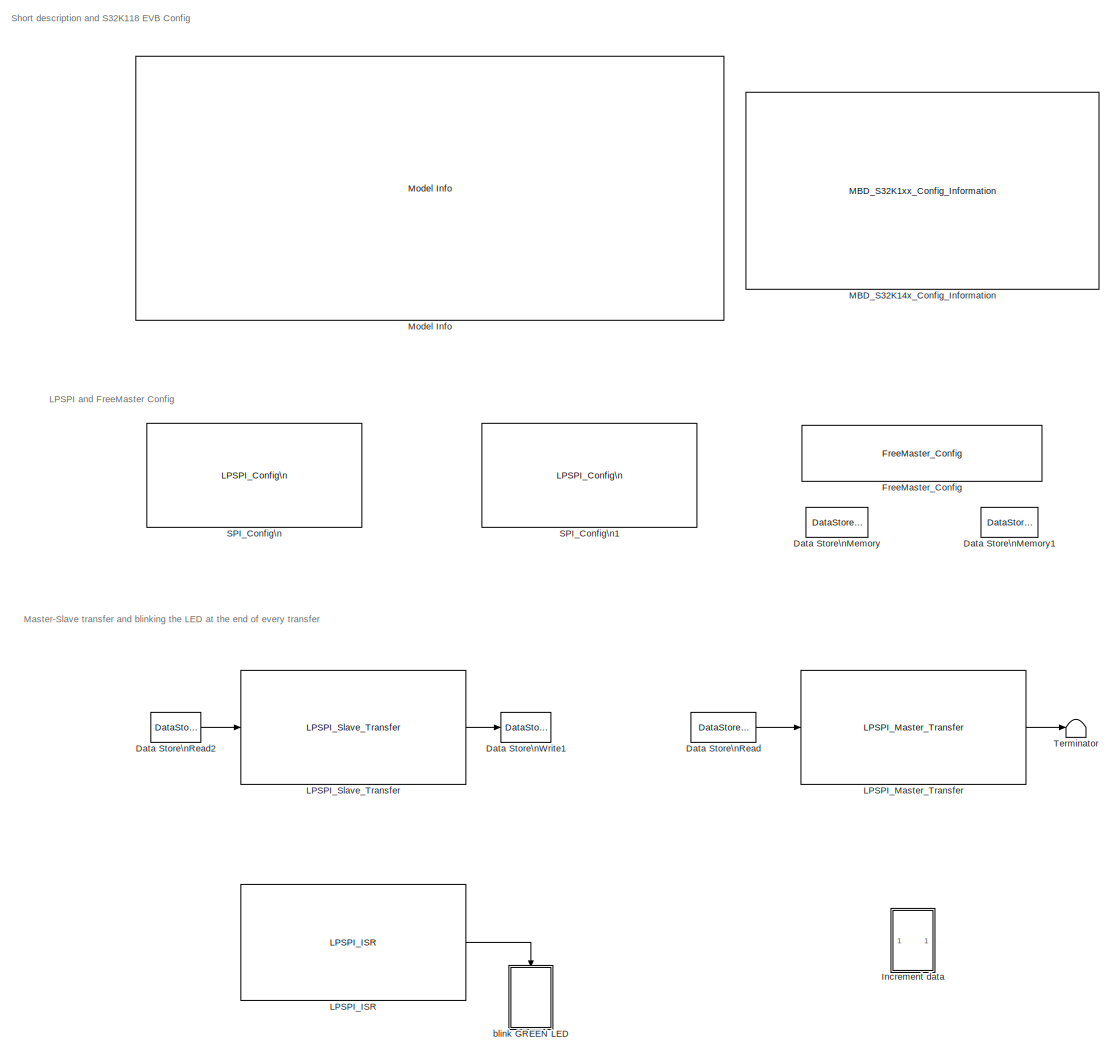
[diagram: root canvas - part 1/1, most of the canvas]
MODEL lpspi_master_slave_s32k11x
KIND model
CONFIG InitFcn = mbd_s32k_consistency_checks(bdroot(gcs));
BLOCK [DataStoreMemory] Data Store\nMemory
  DataStoreName = master_send
  InitialValue = 2
  OutDataTypeStr = uint8
  Priority = 2
  ReadBeforeWriteMsg = warning
  SID = 107
  ShowAdditionalParam = off
  WriteAfterReadMsg = warning
  WriteAfterWriteMsg = warning
BLOCK [DataStoreMemory] Data Store\nMemory1
  DataStoreName = slave_recv
  OutDataTypeStr = uint8
  Priority = 2
  ReadBeforeWriteMsg = warning
  SID = 118
  ShowAdditionalParam = off
  WriteAfterReadMsg = warning
  WriteAfterWriteMsg = warning
BLOCK [DataStoreRead] Data Store\nRead
  DataStoreName = master_send
  Ports = [0, 1]
  SID = 108
BLOCK [DataStoreRead] Data Store\nRead2
  DataStoreName = slave_recv
  Ports = [0, 1]
  Priority = 1
  SID = 119
BLOCK [DataStoreWrite] Data Store\nWrite1
  DataStoreName = slave_recv
  Ports = [1]
  SID = 120
BLOCK [Reference] FreeMaster_Config  REF=mbd_s32k1xx_ec_toolbox/Utility Blocks/FreeMaster_Config
  Ports = []
  Priority = 3
  SID = 126
  SourceBlock = mbd_s32k1xx_ec_toolbox/Utility Blocks/FreeMaster_Config
  SourceType = fm_s32k_config
  baudrate = 115200
  comm_buffer_size = 255
  comm_buffer_size_auto = on
  comm_rqueue_size = 32
  comm_rqueue_size_default = on
  interface = LPUART0
  isr_prio = 1
  max_rec_vars = 8
  max_scope_vars = 8
  mode = Short Interrupt
  rec_buff_size = 1024
  rec_timebase = 0
  rec_timebase_unit = seconds
  rxd = PTB0: [LPUART0_RX | Receive]
  show_adv_opts = on
  txd = PTB1: [LPUART0_TX | Transmit]
  use_recorder = on
  use_scope = on
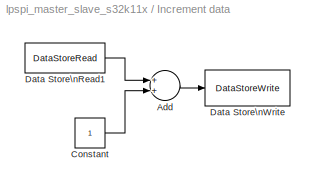
BLOCK [SubSystem] Increment data
  Ports = []
  RequestExecContextInheritance = off
  SID = 127
  Variant = off
BLOCK [Sum] Increment data/Add
  InputSameDT = off
  OutDataTypeStr = Inherit: Inherit via internal rule
  Ports = [2, 1]
  Priority = 3
  SID = 113
  SaturateOnIntegerOverflow = off
BLOCK [Constant] Increment data/Constant
  OutDataTypeStr = uint8
  SID = 115
BLOCK [DataStoreRead] Increment data/Data Store\nRead1
  DataStoreName = master_send
  Ports = [0, 1]
  SID = 114
BLOCK [DataStoreWrite] Increment data/Data Store\nWrite
  DataStoreName = master_send
  Ports = [1]
  SID = 116
BLOCK [Reference] LPSPI_ISR  REF=mbd_s32k1xx_ec_toolbox/Communication Blocks/SPI Blocks/LPSPI_ISR
  Ports = [0, 1]
  SID = 123
  SourceBlock = mbd_s32k1xx_ec_toolbox/Communication Blocks/SPI Blocks/LPSPI_ISR
  SourceType = lpspi_s32k_isr
  instanceNumber = 0
  isr_lvl = 0
  role = Master
  spi_upd = on
  transfer_end = on
BLOCK [Reference] LPSPI_Master_Transfer  REF=mbd_s32k1xx_ec_toolbox/Communication Blocks/SPI Blocks/LPSPI_Master_Transfer
  Ports = [1, 1]
  Priority = 4
  SID = 106
  SourceBlock = mbd_s32k1xx_ec_toolbox/Communication Blocks/SPI Blocks/LPSPI_Master_Transfer
  SourceType = lpspi_s32k_master_transfer
  instance = 0
  pcs = 1
  pcs_polarity = ActiveLow
  spi_upd = on
  timeout = 200
  xfermode = Non blocking
BLOCK [Reference] LPSPI_Slave_Transfer  REF=mbd_s32k1xx_ec_toolbox/Communication Blocks/SPI Blocks/LPSPI_Slave_Transfer
  Ports = [1, 1]
  Priority = 3
  SID = 117
  SourceBlock = mbd_s32k1xx_ec_toolbox/Communication Blocks/SPI Blocks/LPSPI_Slave_Transfer
  SourceType = lpspi_s32k_slave_transfer
  instance = 1
  pcs = 0
  pcs_polarity = ActiveLow
  spi_upd = on
  timeout = 200
  xfermode = Non blocking
BLOCK [Reference] MBD_S32K14x_Config_Information  REF=mbd_s32k1xx_ec_toolbox/MBD_S32K1xx_Config_Information
  ADC_PcrCheckEnDis = on
  AMMCLIB_PcrCheckEnDis = on
  CMP_PcrCheckEnDis = on
  CSEc_PcrCheckEnDis = on
  ConfigParams_PcrCheckEnDis = on
  FM_PcrCheckEnDis = on
  FTM_Dual_Edge_Inputs_PcrCheckEnDis = on
  FTM_Hall_Sensor_Inputs_PcrCheckEnDis = on
  FTM_Input_Edge_Inputs_PcrCheckEnDis = on
  FTM_PWM_PcrCheckEnDis = on
  FTM_Quadrature_Inputs_PcrCheckEnDis = on
  FlexCAN_PcrCheckEnDis = on
  FlexIO_PcrCheckEnDis = on
  GPIO_InputPcrCheckEnDis = on
  GPIO_OutputPcrCheckEnDis = on
  LIN_PcrCheckEnDis = on
  LPI2C_PcrCheckEnDis = on
  LPSPI_PcrCheckEnDis = on
  LPTMR_PcrCheckEnDis = on
  LPUART_PcrCheckEnDis = on
  ModelRef_PcrCheckEnDis = on
  PDB0_PcrCheckEnDis = on
  PIT_PcrCheckEnDis = on
  Ports = []
  Profile_PcrCheckEnDis = on
  RTC_PcrCheckEnDis = on
  SBC_PcrCheckEnDis = on
  SID = 135
  SourceBlock = mbd_s32k1xx_ec_toolbox/MBD_S32K1xx_Config_Information
  SourceType = MBDTBX_EC_S32K
  WDOG_PcrCheckEnDis = on
  config_params = []
  disp_str = Target : S32K144-64KB_SRAM\nPackage : 100-pin\nSystem clock : 80 MHz\nXTAL clock : External 8 MHz\nCompiler : IAR\nTarget Type : FLASH\nDownload Code after build : off\nStep Tick Interrupt Priority : 15
  ds_import_enable = on
  eDMA_PcrCheckEnDis = on
  gcc_target_assemble_opts = -mcpu=cortex-m0plus -mthumb -g
  gcc_target_compile_opts = -mcpu=cortex-m0plus -mthumb -O1 -g -gstrict-dwarf
  gcc_target_default_lcf = on
  gcc_target_link_opts = -mcpu=cortex-m0plus -mthumb
  gcc_target_user_lcf = S32K118_25_flash.ld
  ghs_target_assemble_opts = -mcpu=cortexm0plus -mthumb -fsoft --gnu_asm
  ghs_target_compile_opts = -mcpu=cortexm0plus -mthumb -fsoft -Ogeneral -Wundef -Wimplicit-int -Wshadow -Wtrigraphs --no_commons --gnu_asm -gnu99 -gdwarf-2 -G
  ghs_target_default_lcf = off
  ghs_target_link_opts = -mcpu=cortexm0plus -mthumb -fsoft
  ghs_target_user_lcf = S32K118_25_flash.ld
  iar_target_assemble_opts = --thumb
  iar_target_compile_opts = --thumb -Ol -e --debug --dlib_config normal
  iar_target_default_lcf = off
  iar_target_link_opts = --no_exceptions --vfe --inline
  iar_target_user_lcf = S32K118_25_flash.icf
  mbdt_ver = 0
  mcu_steptick_prio = 0
  mcu_steptick_timer = LPIT Channel 0
  mcu_system_clock_freq = 40
  mcu_target_name = S32K118
  mcu_target_package = 48-LQFP
  mcu_target_sram_size = 25KB
  mcu_xtal_freq = External 40
  pil_download_enable = off
  pil_download_rate = 57600
  pil_opensda_drive = Custom
  pil_opensda_drive_custom = D
  pil_uart_instance = 0
  pil_uart_rx = PTB0: [LPUART0_RX | Receive]
  pil_uart_tx = PTB1: [LPUART0_TX | Transmit]
  rbl_com_port = Custom
  rbl_com_port_custom = COM1
  rbl_download_enable = on
  rbl_download_interface = OpenSDA
  rbl_restart_request = off
  rbl_start_delay = 5000000
  target_compiler = GCC
  target_memory = FLASH
BLOCK [Reference] Model Info  REF=simulink/Model-Wide\nUtilities/Model Info
  DisplayStringWithTags = Model Name: %<ModelName>\n\nDescription: %<Description>
  Frame = off
  HorizontalTextAlignment = Left
  LeftAlignmentValue = 0.02
  MaskDisplayString = Model Name: lpspi_master_slave_s32k11x\\n\\nDescription: This demo shows how to use 2 instances of LPSPI (one master, one slave) to transfer data and trigger a subsystem\\nat TRANSFER END event.\\n\\nHW requirements:\\n - 1 S32K118 EVB\\n\\nPlease connect the following:\\n[Master: MOSI] B4 J2.4 - J1.11 D1 [Slave: MOSI] \\n[Master: MISO] B3 J2.5 - J1.6   E0 [Slave: MISO] \\n[Master: PCS0] B5 J2.3 -...<+451ch>
  Ports = []
  SID = 128
  SourceBlock = simulink/Model-Wide\nUtilities/Model Info
  SourceProductBaseCode = SL
  SourceProductName = Simulink
  SourceType = CMBlock
BLOCK [Reference] SPI_Config\n  REF=mbd_s32k1xx_ec_toolbox/Communication Blocks/SPI Blocks/LPSPI_Config\n
  BaudRate = 50000
  BitOrder = MSB first
  CPHA = 0
  CPOL = 0
  ContinuousTransfer = off
  InstanceNumber = 0
  PCSPol = ActiveLow
  Ports = []
  Priority = 2
  Role = Master
  SID = 105
  ShowAdvanced = on
  SourceBlock = mbd_s32k1xx_ec_toolbox/Communication Blocks/SPI Blocks/LPSPI_Config\n
  SourceType = lpspi_s32k_config
  TransferSize = 8
  WhichPCS = 1
  pcs0 = None
  pcs1 = PTB5: [LPSPI0_PCS1 | Peripheral Chip Select 1]
  pcs2 = None
  pcs3 = not available
  sck = PTB2: [LPSPI0_SCK | LPSPI Serial Clock I/O]
  sin = PTB3: [LPSPI0_SIN | LPSPI Serial Data Input]
  sout = PTB4: [LPSPI0_SOUT | LPSPI Serial Data Output]
BLOCK [Reference] SPI_Config\n1  REF=mbd_s32k1xx_ec_toolbox/Communication Blocks/SPI Blocks/LPSPI_Config\n
  BaudRate = 100
  BitOrder = MSB first
  CPHA = 0
  CPOL = 0
  ContinuousTransfer = off
  InstanceNumber = 1
  PCSPol = ActiveLow
  Ports = []
  Priority = 2
  Role = Slave
  SID = 112
  ShowAdvanced = on
  SourceBlock = mbd_s32k1xx_ec_toolbox/Communication Blocks/SPI Blocks/LPSPI_Config\n
  SourceType = lpspi_s32k_config
  TransferSize = 8
  WhichPCS = 0
  pcs0 = None
  pcs1 = None
  pcs2 = not available
  pcs3 = not available
  sck = PTD0: [LPSPI1_SCK | LPSPI Serial Clock I/O]
  sin = PTD1: [LPSPI1_SIN | LPSPI Serial Data Input]
  sout = PTD2: [LPSPI1_SOUT | LPSPI Serial Data Output]
BLOCK [Terminator] Terminator
  SID = 109
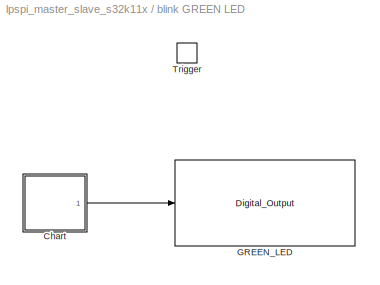
BLOCK [SubSystem] blink GREEN LED
  Ports = [0, 0, 0, 1]
  RequestExecContextInheritance = off
  SID = 124
  Variant = off
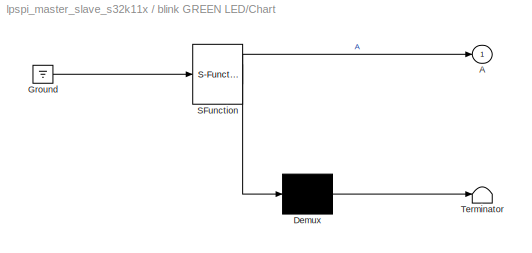
BLOCK [SubSystem] blink GREEN LED/Chart
  ErrorFcn = Stateflow.Translate.translate
  PermitHierarchicalResolution = ExplicitOnly
  Ports = [0, 1]
  RequestExecContextInheritance = off
  SFBlockType = Chart
  SID = 111
  TreatAsAtomicUnit = on
  Variant = off
BLOCK [Outport] blink GREEN LED/Chart/ A
  IconDisplay = Port number
  SID = 111::6
BLOCK [Demux] blink GREEN LED/Chart/ Demux 
  Outputs = 1
  Ports = [1, 1]
  SID = 111::32
BLOCK [Ground] blink GREEN LED/Chart/ Ground 
  SID = 111::34
BLOCK [S-Function] blink GREEN LED/Chart/ SFunction 
  EnableBusSupport = off
  FunctionName = sf_sfun
  PortCounts = [1 2]
  Ports = [1, 2]
  SFcnIsStateOwnerBlock = off
  SFunctionDeploymentMode = off
  SID = 111::31
  Tag = Stateflow S-Function lpspi_master_slave_s32k11x 3
BLOCK [Terminator] blink GREEN LED/Chart/ Terminator 
  SID = 111::33
BLOCK [Reference] blink GREEN LED/GREEN_LED  REF=mbd_s32k1xx_ec_toolbox/GPIO Blocks/Digital_Output
  Ports = [1]
  SID = 110
  SourceBlock = mbd_s32k1xx_ec_toolbox/GPIO Blocks/Digital_Output
  SourceType = gpio_s32k_output
  drive_strength = Low
  gpio_pin = PTD15: [PTD15 | Port D I/O]
  init_val = Low
BLOCK [TriggerPort] blink GREEN LED/Trigger
  PortDimensions = 1
  Ports = []
  SID = 125
  StatesWhenEnabling = held
  TriggerType = function-call
  VariantControl = Variant
ANNOTATION (root): LPSPI and FreeMaster Config
ANNOTATION (root): Master-Slave transfer and blinking the LED at the end of every transfer
ANNOTATION (root): Short description and S32K118 EVB Config
LINE Data Store\nRead2:1 -> LPSPI_Slave_Transfer:1
LINE Data Store\nRead:1 -> LPSPI_Master_Transfer:1
LINE Increment data/Add:1 -> Increment data/Data Store\nWrite:1
LINE Increment data/Constant:1 -> Increment data/Add:2
LINE Increment data/Data Store\nRead1:1 -> Increment data/Add:1
LINE LPSPI_ISR:1 -> blink GREEN LED:trigger
LINE LPSPI_Master_Transfer:1 -> Terminator:1
LINE LPSPI_Slave_Transfer:1 -> Data Store\nWrite1:1
LINE blink GREEN LED/Chart/ Demux :1 -> blink GREEN LED/Chart/ Terminator :1
LINE blink GREEN LED/Chart/ Ground :1 -> blink GREEN LED/Chart/ SFunction :1
LINE blink GREEN LED/Chart/ SFunction :1 -> blink GREEN LED/Chart/ Demux :1
LINE blink GREEN LED/Chart/ SFunction :2 -> blink GREEN LED/Chart/ A:1
LINE blink GREEN LED/Chart:1 -> blink GREEN LED/GREEN_LED:1
CHART blink GREEN LED/Chart states=2 transitions=3
  STATE_LABEL 'A'
  STATE_LABEL 'A1'
